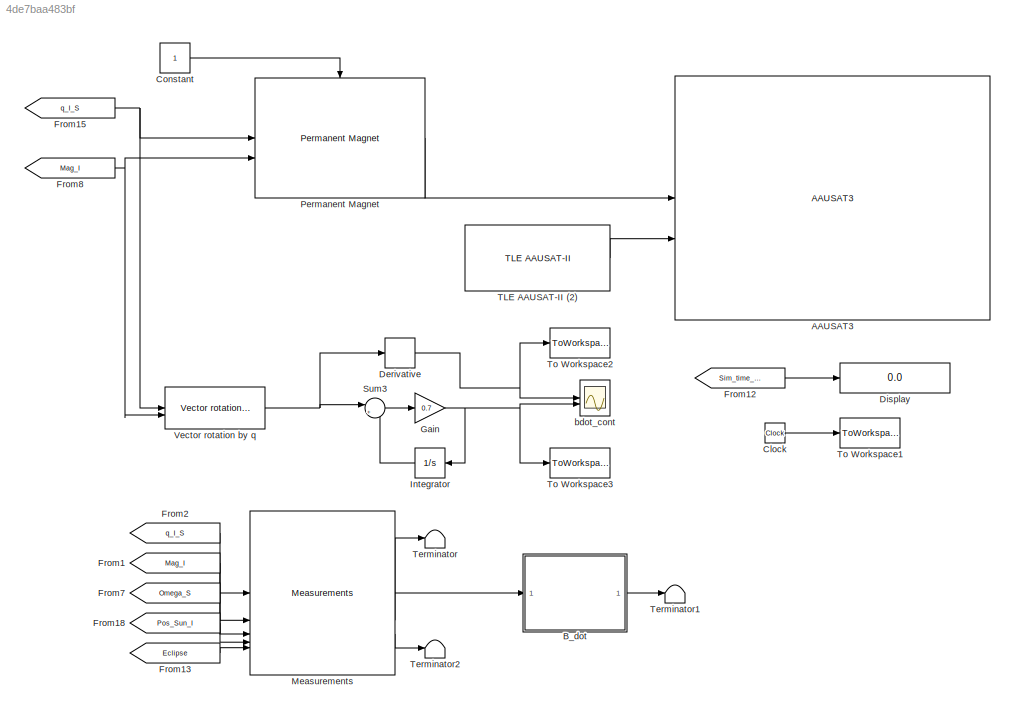
MODEL mdl_4de7baa483bf
KIND model
CONFIG AbsTol = auto
CONFIG EnableMultiTasking = on
CONFIG FixedStep = auto
CONFIG MaxStep = auto
CONFIG MinStep = auto
CONFIG RelTol = 1e-3
CONFIG SampleTimeConstraint = Unconstrained
CONFIG SolverName = ode45
CONFIG StartTime = 0.0
CONFIG StopTime = 48000.0
BLOCK [Reference] AAUSAT3  REF=aausat3_lib/AAUSAT3  (lib defined in mdl_4157f6465749, slx_d9305f96731e)
  SourceBlock = aausat3_lib/AAUSAT3
  SourceProductName = AAUSAT3
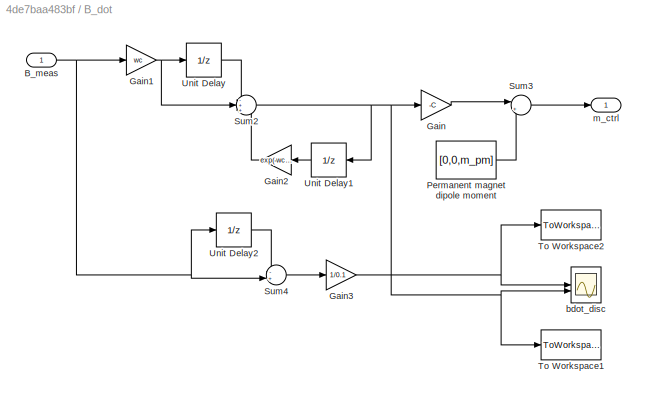
BLOCK [SubSystem] B_dot
  AncestorBlock = aausat3_lib/ACS/B_dot
BLOCK [Inport] B_dot/B_meas
BLOCK [Gain] B_dot/Gain
  Gain = -C
BLOCK [Gain] B_dot/Gain1
  Gain = wc
BLOCK [Gain] B_dot/Gain2
  Gain = exp(-wc*Ts)
  NameLocation = top
BLOCK [Gain] B_dot/Gain3
  Gain = 1/0.1
BLOCK [Constant] B_dot/Permanent magnet dipole moment
  Value = [0,0,m_pm]
BLOCK [Sum] B_dot/Sum2
  Inputs = -++
BLOCK [Sum] B_dot/Sum3
  Inputs = |++
BLOCK [Sum] B_dot/Sum4
  Inputs = -+|
BLOCK [ToWorkspace] B_dot/To Workspace1
  MaxDataPoints = inf
  SampleTime = -1
  VariableName = bdot_d_filter
BLOCK [ToWorkspace] B_dot/To Workspace2
  MaxDataPoints = inf
  SampleTime = -1
  VariableName = bdot_d_nofilter
BLOCK [UnitDelay] B_dot/Unit Delay
  SampleTime = -1
BLOCK [UnitDelay] B_dot/Unit Delay1
  NameLocation = top
  SampleTime = -1
BLOCK [UnitDelay] B_dot/Unit Delay2
  SampleTime = -1
BLOCK [Scope] B_dot/bdot_disc
  Floating = off
  NumInputPorts = 2
  ScopeSpecificationString = C++SS(StrPVP('Location','[4, 77, 1278, 771]'),StrPVP('Open','off'),MxPVP('AxesTitles',54,'struct(''axes1'',''Bdot (matlab) [T/s]'',''axes2'',''Bdot (filter) [T/s]'')'),StrPVP('TimeRange','1000'),StrPVP('YMin','-0.00035~-2.5e-05'),StrPVP('YMax','0.0004~2.25e-05'),StrPVP('SaveName','ScopeData6'),StrPVP('DataFormat','StructureWithTime'),StrPVP('LimitDataPoints','off'),StrPVP('BlockParamSampleInput','...<+30ch>
BLOCK [Outport] B_dot/m_ctrl
  PortDimensions = 3
BLOCK [Clock] Clock
BLOCK [Constant] Constant
BLOCK [Derivative] Derivative
BLOCK [Display] Display
  Decimation = 1
  Format = long
BLOCK [From] From1
  CloseFcn = tagdialog Close
  GotoTag = Mag_I
  TagVisibility = global
BLOCK [From] From12
  CloseFcn = tagdialog Close
  GotoTag = Sim_time_JD
  TagVisibility = global
BLOCK [From] From13
  CloseFcn = tagdialog Close
  GotoTag = Eclipse
  TagVisibility = global
BLOCK [From] From15
  CloseFcn = tagdialog Close
  GotoTag = q_I_S
  TagVisibility = global
BLOCK [From] From18
  CloseFcn = tagdialog Close
  GotoTag = Pos_Sun_I
  TagVisibility = global
BLOCK [From] From2
  CloseFcn = tagdialog Close
  GotoTag = q_I_S
  TagVisibility = global
BLOCK [From] From7
  CloseFcn = tagdialog Close
  GotoTag = Omega_S
  TagVisibility = global
BLOCK [From] From8
  CloseFcn = tagdialog Close
  GotoTag = Mag_I
  TagVisibility = global
BLOCK [Gain] Gain
  Gain = 0.7
BLOCK [Integrator] Integrator
  NameLocation = top
BLOCK [Reference] Measurements  REF=aausat3_lib/Sensor Emulation/Measurements  (lib defined in mdl_4157f6465749, slx_d9305f96731e)
  SourceBlock = aausat3_lib/Sensor Emulation/Measurements
  SourceProductName = AAUSAT3
BLOCK [Reference] Permanent Magnet  REF=aausat3_lib/Actuator Emulation/Permanent Magnet  (lib defined in mdl_4157f6465749, slx_d9305f96731e)
  SourceBlock = aausat3_lib/Actuator Emulation/Permanent Magnet
  SourceProductName = AAUSAT3
BLOCK [Sum] Sum3
  Inputs = |+-
BLOCK [Reference] TLE AAUSAT-II (2)  REF=aausat3_lib/Orbit and Ephemeris/TLE AAUSAT-II  (lib defined in mdl_4157f6465749, slx_d9305f96731e)
  SourceBlock = aausat3_lib/Orbit and Ephemeris/TLE AAUSAT-II
  SourceProductName = AAUSAT3
BLOCK [Terminator] Terminator
BLOCK [Terminator] Terminator1
BLOCK [Terminator] Terminator2
BLOCK [ToWorkspace] To Workspace1
  MaxDataPoints = inf
  SampleTime = -1
  VariableName = sim_time
BLOCK [ToWorkspace] To Workspace2
  MaxDataPoints = inf
  SampleTime = -1
  VariableName = bdot_c_matlab
BLOCK [ToWorkspace] To Workspace3
  MaxDataPoints = inf
  SampleTime = -1
  VariableName = bdot_c_filter
BLOCK [Reference] Vector rotation by q  REF=aausat3_lib/Actuator Emulation/Permanent Magnet/Vector rotation by q  (lib defined in mdl_4157f6465749, slx_d9305f96731e)
  SourceBlock = aausat3_lib/Actuator Emulation/Permanent Magnet/Vector rotation by q
  SourceProductName = AAUSAT3
  SourceType = SubSystem
BLOCK [Scope] bdot_cont
  Floating = off
  NumInputPorts = 2
  ScopeSpecificationString = Simulink.scopes.TimeScopeBlockCfg('CurrentConfiguration', extmgr.ConfigurationSet(extmgr.Configuration('Core','General UI',true),extmgr.Configuration('Core','Source UI',true),extmgr.Configuration('Sources','WiredSimulink',true,'DataLoggingVariableName','ScopeData5','DataLoggingSaveFormat','StructureWithTime','DataLoggingDecimation','1','DataLoggingDecimateData',true),extmgr.Configuration('Visuals'...<+2483ch>
LINE B_dot:1 -> Terminator1:1
LINE Clock:1 -> To Workspace1:1
LINE Constant:1 -> Permanent Magnet:enable
NET Derivative:1 -> To Workspace2:1, bdot_cont:1
LINE From12:1 -> Display:1
LINE From13:1 -> Measurements:5
NET From15:1 -> Permanent Magnet:1, Vector rotation by q:1
LINE From18:1 -> Measurements:4
LINE From1:1 -> Measurements:2
LINE From2:1 -> Measurements:1
LINE From7:1 -> Measurements:3
NET From8:1 -> Permanent Magnet:2, Vector rotation by q:2
NET Gain:1 -> Integrator:1, To Workspace3:1, bdot_cont:2
LINE Integrator:1 -> Sum3:2
LINE Measurements:1 -> Terminator:1
LINE Measurements:2 -> B_dot:1
LINE Measurements:3 -> Terminator2:1
LINE Permanent Magnet:1 -> AAUSAT3:1
LINE Sum3:1 -> Gain:1
LINE TLE AAUSAT-II (2):1 -> AAUSAT3:2
NET Vector rotation by q:1 -> Derivative:1, Sum3:1
note: NET lines group one-source signal fan-out (src -> all destinations, sorted); 1:1 wires keep LINE
